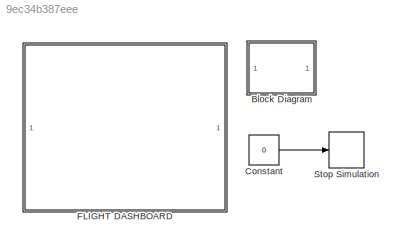
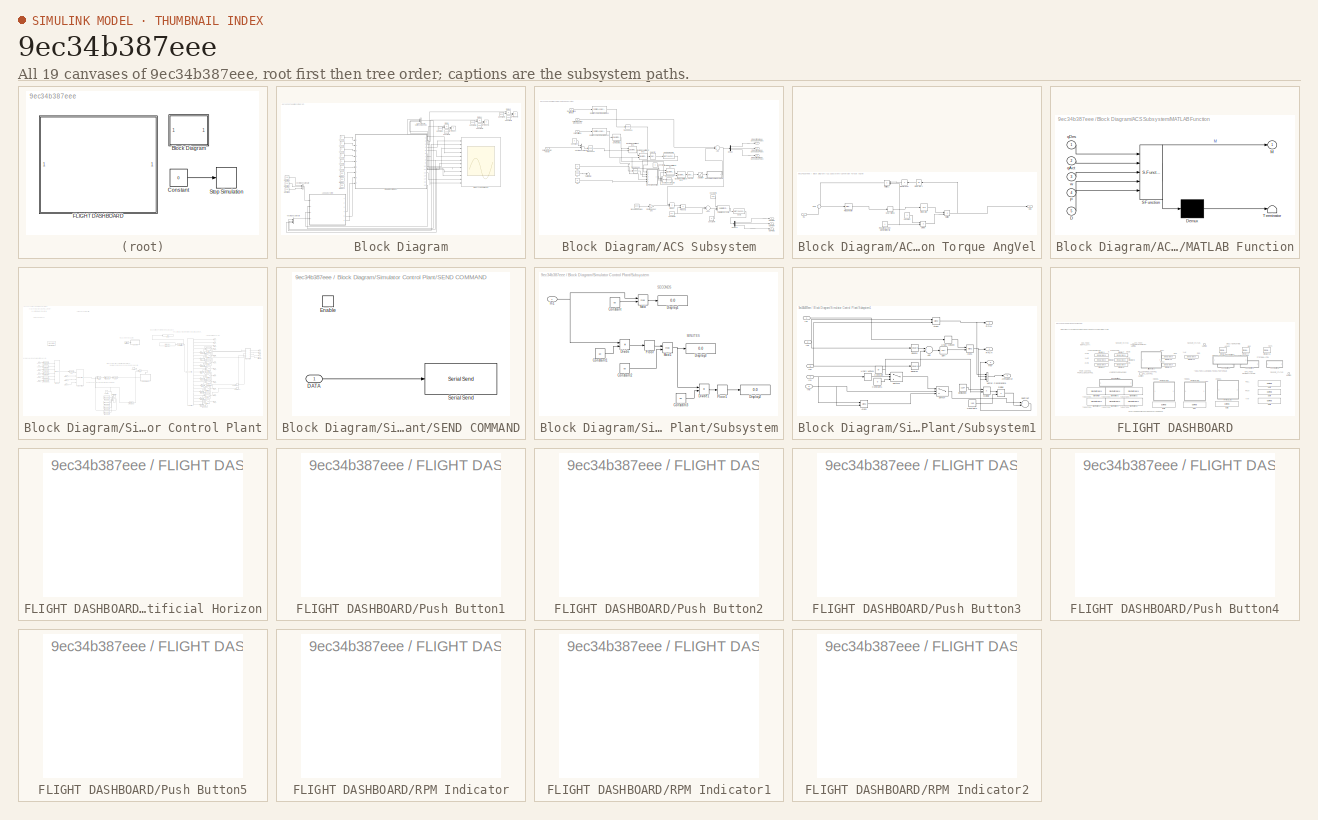
[diagram: thumbnail index - all 19 canvases of the model, root first then tree order]
MODEL slx_9ec34b387eee
KIND model
CONFIG AbsTol = auto
CONFIG EnableMultiTasking = on
CONFIG FixedStep = auto
CONFIG MaxStep = auto
CONFIG MinStep = auto
CONFIG RelTol = 1e-3
CONFIG SampleTimeConstraint = Unconstrained
CONFIG Solver = FixedStepAuto
CONFIG SolverName = FixedStepAuto
CONFIG StartTime = 0.0
CONFIG StopTime = inf
BLOCK [SubSystem] Block Diagram
  Ports = []
  RequestExecContextInheritance = off
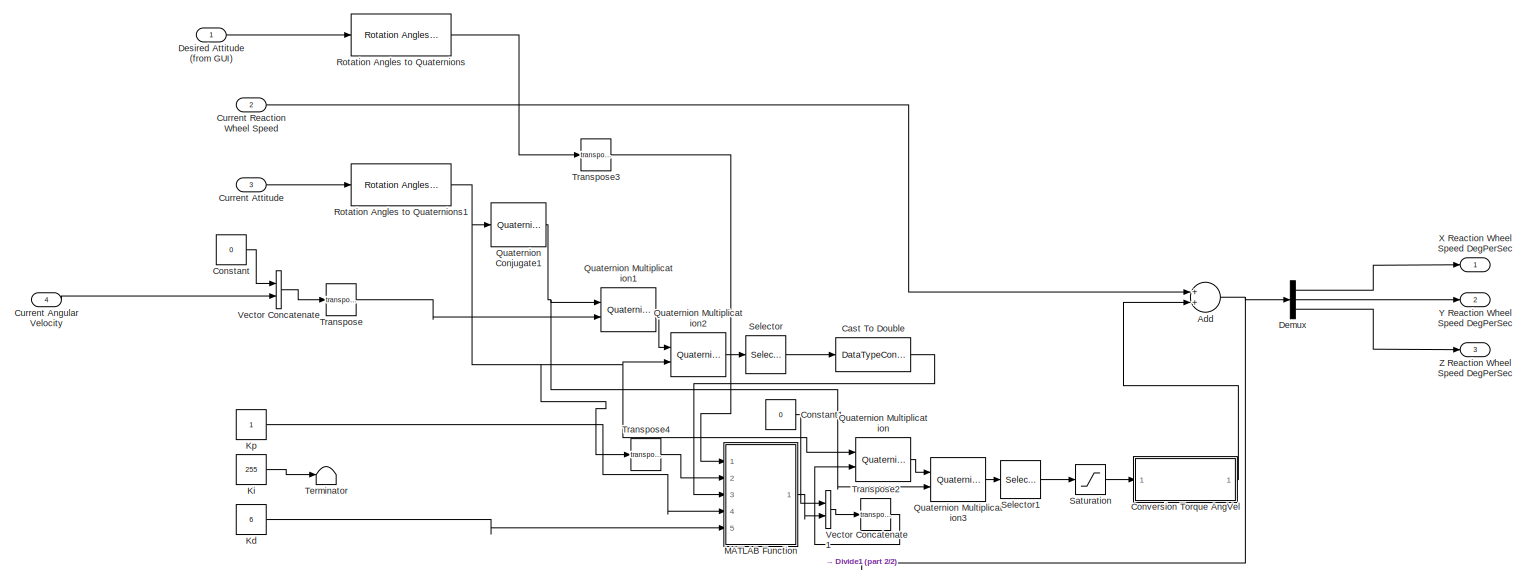
[diagram: Block Diagram/ACS Subsystem - part 1/2, full width, middle band]
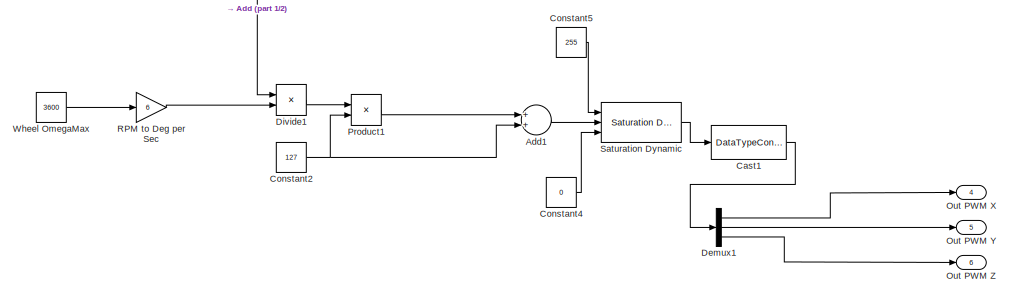
[diagram: Block Diagram/ACS Subsystem - part 2/2, bottom right region]
BLOCK [SubSystem] Block Diagram/ACS Subsystem
  Ports = [4, 6]
  RequestExecContextInheritance = off
BLOCK [Sum] Block Diagram/ACS Subsystem/Add
  InputSameDT = off
  OutDataTypeStr = Inherit: Inherit via internal rule
  Ports = [2, 1]
  SaturateOnIntegerOverflow = off
BLOCK [Sum] Block Diagram/ACS Subsystem/Add1
  InputSameDT = off
  OutDataTypeStr = Inherit: Inherit via internal rule
  Ports = [2, 1]
  SaturateOnIntegerOverflow = off
BLOCK [DataTypeConversion] Block Diagram/ACS Subsystem/Cast To Double
  OutDataTypeStr = double
  RndMeth = Floor
  SaturateOnIntegerOverflow = off
BLOCK [DataTypeConversion] Block Diagram/ACS Subsystem/Cast1
  OutDataTypeStr = int32
  RndMeth = Floor
BLOCK [Constant] Block Diagram/ACS Subsystem/Constant
  Value = 0
BLOCK [Constant] Block Diagram/ACS Subsystem/Constant1
  Value = 0
BLOCK [Constant] Block Diagram/ACS Subsystem/Constant2
  Value = 127
BLOCK [Constant] Block Diagram/ACS Subsystem/Constant4
  Value = 0
BLOCK [Constant] Block Diagram/ACS Subsystem/Constant5
  Value = 255
BLOCK [SubSystem] Block Diagram/ACS Subsystem/Conversion Torque AngVel
  Ports = [1, 1]
  RequestExecContextInheritance = off
BLOCK [Constant] Block Diagram/ACS Subsystem/Conversion Torque AngVel/Constant
BLOCK [Product] Block Diagram/ACS Subsystem/Conversion Torque AngVel/Divide
  InputSameDT = off
  Inputs = */
  OutDataTypeStr = Inherit: Inherit via internal rule
  Ports = [2, 1]
  RndMeth = Floor
  SaturateOnIntegerOverflow = off
BLOCK [Inport] Block Diagram/ACS Subsystem/Conversion Torque AngVel/In1
  IconDisplay = Port number
BLOCK [Integrator] Block Diagram/ACS Subsystem/Conversion Torque AngVel/Integrator
  Ports = [1, 1]
BLOCK [Integrator] Block Diagram/ACS Subsystem/Conversion Torque AngVel/Integrator1
  Ports = [1, 1]
BLOCK [Product] Block Diagram/ACS Subsystem/Conversion Torque AngVel/Multiply
  InputSameDT = off
  OutDataTypeStr = Inherit: Inherit via internal rule
  Ports = [2, 1]
  RndMeth = Floor
  SaturateOnIntegerOverflow = off
BLOCK [Product] Block Diagram/ACS Subsystem/Conversion Torque AngVel/Multiply1
  InputSameDT = off
  OutDataTypeStr = Inherit: Inherit via internal rule
  Ports = [2, 1]
  RndMeth = Floor
  SaturateOnIntegerOverflow = off
BLOCK [Outport] Block Diagram/ACS Subsystem/Conversion Torque AngVel/Out1
  IconDisplay = Port number
BLOCK [Reference] Block Diagram/ACS Subsystem/Conversion Torque AngVel/PID Controller  REF=simulink/Continuous/PID Controller
  Ports = [1, 1]
  SourceBlock = simulink/Continuous/PID Controller
  SourceProductBaseCode = SL
  SourceProductName = Simulink
  SourceType = PID 1dof
BLOCK [Constant] Block Diagram/ACS Subsystem/Conversion Torque AngVel/Reaction Wheel Moment of Inertia
BLOCK [Product] Block Diagram/ACS Subsystem/Conversion Torque AngVel/Reciprocal
  InputSameDT = off
  Inputs = /
  OutDataTypeStr = Inherit: Inherit via internal rule
  Ports = [1, 1]
  RndMeth = Floor
  SaturateOnIntegerOverflow = off
BLOCK [Sum] Block Diagram/ACS Subsystem/Conversion Torque AngVel/Sum
  IconShape = round
  InputSameDT = off
  Inputs = +|+
  OutDataTypeStr = Inherit: Inherit via internal rule
  Ports = [2, 1]
  SaturateOnIntegerOverflow = off
BLOCK [UnaryMinus] Block Diagram/ACS Subsystem/Conversion Torque AngVel/Unary Minus
BLOCK [Inport] Block Diagram/ACS Subsystem/Current Angular Velocity
  IconDisplay = Port number
  Port = 4
BLOCK [Inport] Block Diagram/ACS Subsystem/Current Attitude
  IconDisplay = Port number
  Port = 3
BLOCK [Inport] Block Diagram/ACS Subsystem/Current Reaction Wheel Speed
  IconDisplay = Port number
  Port = 2
BLOCK [Demux] Block Diagram/ACS Subsystem/Demux
  DisplayOption = bar
  Outputs = 3
  Ports = [1, 3]
BLOCK [Demux] Block Diagram/ACS Subsystem/Demux1
  DisplayOption = bar
  Outputs = 3
  Ports = [1, 3]
BLOCK [Inport] Block Diagram/ACS Subsystem/Desired Attitude (from GUI)
  IconDisplay = Port number
BLOCK [Product] Block Diagram/ACS Subsystem/Divide1
  InputSameDT = off
  Inputs = */
  OutDataTypeStr = Inherit: Inherit via internal rule
  Ports = [2, 1]
  RndMeth = Floor
  SaturateOnIntegerOverflow = off
BLOCK [Constant] Block Diagram/ACS Subsystem/Kd
  OutDataTypeStr = double
  SampleTime = -1
  Value = 6
BLOCK [Constant] Block Diagram/ACS Subsystem/Ki
  OutDataTypeStr = double
  SampleTime = -1
  Value = 255
BLOCK [Constant] Block Diagram/ACS Subsystem/Kp
  OutDataTypeStr = double
  SampleTime = -1
BLOCK [SubSystem] Block Diagram/ACS Subsystem/MATLAB Function
  ErrorFcn = Stateflow.Translate.translate
  PermitHierarchicalResolution = ExplicitOnly
  Ports = [5, 1]
  RequestExecContextInheritance = off
  SFBlockType = MATLAB Function
  TreatAsAtomicUnit = on
BLOCK [Demux] Block Diagram/ACS Subsystem/MATLAB Function/ Demux 
  Outputs = 1
  Ports = [1, 1]
BLOCK [S-Function] Block Diagram/ACS Subsystem/MATLAB Function/ SFunction 
  EnableBusSupport = on
  FunctionName = sf_sfun
  PortCounts = [5 2]
  Ports = [5, 2]
  SFcnIsStateOwnerBlock = off
  SFunctionDeploymentMode = off
  Tag = Stateflow S-Function FlightSimulator 2
BLOCK [Terminator] Block Diagram/ACS Subsystem/MATLAB Function/ Terminator 
BLOCK [Inport] Block Diagram/ACS Subsystem/MATLAB Function/D
  IconDisplay = Port number
  Port = 5
BLOCK [Outport] Block Diagram/ACS Subsystem/MATLAB Function/M
  IconDisplay = Port number
BLOCK [Inport] Block Diagram/ACS Subsystem/MATLAB Function/P
  IconDisplay = Port number
  Port = 4
BLOCK [Inport] Block Diagram/ACS Subsystem/MATLAB Function/qAct
  IconDisplay = Port number
  Port = 2
BLOCK [Inport] Block Diagram/ACS Subsystem/MATLAB Function/qDes
  IconDisplay = Port number
BLOCK [Inport] Block Diagram/ACS Subsystem/MATLAB Function/w
  IconDisplay = Port number
  Port = 3
BLOCK [Outport] Block Diagram/ACS Subsystem/Out PWM X
  IconDisplay = Port number
  Port = 4
BLOCK [Outport] Block Diagram/ACS Subsystem/Out PWM Y
  IconDisplay = Port number
  Port = 5
BLOCK [Outport] Block Diagram/ACS Subsystem/Out PWM Z
  IconDisplay = Port number
  Port = 6
BLOCK [Product] Block Diagram/ACS Subsystem/Product1
  InputSameDT = off
  OutDataTypeStr = Inherit: Inherit via internal rule
  Ports = [2, 1]
  RndMeth = Floor
  SaturateOnIntegerOverflow = off
BLOCK [Reference] Block Diagram/ACS Subsystem/Quaternion Conjugate1  REF=aerolibutil/Quaternion
Conjugate
  Ports = [1, 1]
  SourceBlock = aerolibutil/Quaternion\nConjugate
  SourceProductBaseCode = AE
  SourceProductName = Aerospace Blockset
  SourceType = Quaternion Conjugate
BLOCK [Reference] Block Diagram/ACS Subsystem/Quaternion Multiplication  REF=aerolibutil/Quaternion
Multiplication
  Ports = [2, 1]
  SourceBlock = aerolibutil/Quaternion\nMultiplication
  SourceProductBaseCode = AE
  SourceProductName = Aerospace Blockset
  SourceType = Quaternion Multiplication
BLOCK [Reference] Block Diagram/ACS Subsystem/Quaternion Multiplication1  REF=aerolibutil/Quaternion
Multiplication
  Ports = [2, 1]
  SourceBlock = aerolibutil/Quaternion\nMultiplication
  SourceProductBaseCode = AE
  SourceProductName = Aerospace Blockset
  SourceType = Quaternion Multiplication
BLOCK [Reference] Block Diagram/ACS Subsystem/Quaternion Multiplication2  REF=aerolibutil/Quaternion
Multiplication
  Ports = [2, 1]
  SourceBlock = aerolibutil/Quaternion\nMultiplication
  SourceProductBaseCode = AE
  SourceProductName = Aerospace Blockset
  SourceType = Quaternion Multiplication
BLOCK [Reference] Block Diagram/ACS Subsystem/Quaternion Multiplication3  REF=aerolibutil/Quaternion
Multiplication
  Ports = [2, 1]
  SourceBlock = aerolibutil/Quaternion\nMultiplication
  SourceProductBaseCode = AE
  SourceProductName = Aerospace Blockset
  SourceType = Quaternion Multiplication
BLOCK [Gain] Block Diagram/ACS Subsystem/RPM to Deg per Sec
  Gain = 6
  OutDataTypeStr = Inherit: Inherit via internal rule
  ParamDataTypeStr = Inherit: Inherit via internal rule
  SaturateOnIntegerOverflow = off
BLOCK [Reference] Block Diagram/ACS Subsystem/Rotation Angles to Quaternions  REF=sharedtransform/Rotation Angles to Quaternions
  AttributesFormatString = Rotation Order: %<rotationOrder>
  Ports = [1, 1]
  SourceBlock = sharedtransform/Rotation Angles to Quaternions
  SourceProductBaseCode = AE
  SourceProductName = Aerospace Blockset
  SourceType = Ang2Quat
BLOCK [Reference] Block Diagram/ACS Subsystem/Rotation Angles to Quaternions1  REF=sharedtransform/Rotation Angles to Quaternions
  AttributesFormatString = Rotation Order: %<rotationOrder>
  Ports = [1, 1]
  SourceBlock = sharedtransform/Rotation Angles to Quaternions
  SourceProductBaseCode = AE
  SourceProductName = Aerospace Blockset
  SourceType = Ang2Quat
BLOCK [Saturate] Block Diagram/ACS Subsystem/Saturation
  InputPortMap = u0
  LowerLimit = -0.43
  Ports = [1, 1]
  UpperLimit = 0.43
BLOCK [Reference] Block Diagram/ACS Subsystem/Saturation Dynamic  REF=simulink/Discontinuities/Saturation
Dynamic
  Ports = [3, 1]
  SourceBlock = simulink/Discontinuities/Saturation\nDynamic
  SourceProductBaseCode = SL
  SourceProductName = Simulink
  SourceType = Saturation Dynamic
BLOCK [Selector] Block Diagram/ACS Subsystem/Selector
  IndexOptions = Index vector (dialog)
  Indices = [2 3 4]
  InputPortWidth = 4
  OutputSizes = 1
  Ports = [1, 1]
BLOCK [Selector] Block Diagram/ACS Subsystem/Selector1
  IndexOptions = Index vector (dialog)
  Indices = [2 3 4]
  InputPortWidth = 4
  OutputSizes = 1
  Ports = [1, 1]
BLOCK [Terminator] Block Diagram/ACS Subsystem/Terminator
BLOCK [Math] Block Diagram/ACS Subsystem/Transpose
  Operator = transpose
  Ports = [1, 1]
BLOCK [Math] Block Diagram/ACS Subsystem/Transpose2
  Operator = transpose
  Ports = [1, 1]
BLOCK [Math] Block Diagram/ACS Subsystem/Transpose3
  Operator = transpose
  Ports = [1, 1]
BLOCK [Math] Block Diagram/ACS Subsystem/Transpose4
  Operator = transpose
  Ports = [1, 1]
BLOCK [Concatenate] Block Diagram/ACS Subsystem/Vector Concatenate
  Ports = [2, 1]
BLOCK [Concatenate] Block Diagram/ACS Subsystem/Vector Concatenate1
  Ports = [2, 1]
BLOCK [Constant] Block Diagram/ACS Subsystem/Wheel OmegaMax
  Value = 3600
BLOCK [Outport] Block Diagram/ACS Subsystem/X Reaction Wheel Speed DegPerSec
  IconDisplay = Port number
BLOCK [Outport] Block Diagram/ACS Subsystem/Y Reaction Wheel Speed DegPerSec
  IconDisplay = Port number
  Port = 2
BLOCK [Outport] Block Diagram/ACS Subsystem/Z Reaction Wheel Speed DegPerSec
  IconDisplay = Port number
  Port = 3
BLOCK [Concatenate] Block Diagram/Concatenate Current Reaction Wheel Speeds
  NumInputs = 3
  Ports = [3, 1]
BLOCK [Constant] Block Diagram/Constant
  Value = 3600
BLOCK [Constant] Block Diagram/Constant1
  Value = 100
BLOCK [Constant] Block Diagram/Constant2
  Value = 3600
BLOCK [Constant] Block Diagram/Constant3
  Value = 100
BLOCK [Constant] Block Diagram/Constant4
  Value = 3600
BLOCK [Constant] Block Diagram/Constant5
  Value = 100
BLOCK [Scope] Block Diagram/DISPLAY TELEMETRY
  Floating = off
  NumInputPorts = 12
  Ports = [12]
  ScopeSpecificationString = Simulink.scopes.TimeScopeBlockCfg('CurrentConfiguration', extmgr.ConfigurationSet(extmgr.Configuration('Core','General UI',true,'FigureColor',[0 0.0549019607843137 0.105882352941176],'DisplayFullSourceName',true,'ShowMainToolbar',false,'ShowStatusbar',false),extmgr.Configuration('Core','Source UI',true),extmgr.Configuration('Sources','WiredSimulink',true,'DataLogging',true),extmgr.Configuration('V...<+12064ch>
BLOCK [Constant] Block Diagram/Desired X
  OutDataTypeStr = double
  SampleTime = -1
  Value = 128
BLOCK [Constant] Block Diagram/Desired Y
  OutDataTypeStr = double
  SampleTime = -1
  Value = 128
BLOCK [Constant] Block Diagram/Desired Z
  OutDataTypeStr = double
  SampleTime = -1
  Value = 128
BLOCK [Product] Block Diagram/Divide
  InputSameDT = off
  Inputs = */
  OutDataTypeStr = Inherit: Inherit via internal rule
  Ports = [2, 1]
  RndMeth = Floor
  SaturateOnIntegerOverflow = off
BLOCK [Product] Block Diagram/Divide1
  InputSameDT = off
  Inputs = */
  OutDataTypeStr = Inherit: Inherit via internal rule
  Ports = [2, 1]
  RndMeth = Floor
  SaturateOnIntegerOverflow = off
BLOCK [Product] Block Diagram/Divide2
  InputSameDT = off
  Inputs = */
  OutDataTypeStr = Inherit: Inherit via internal rule
  Ports = [2, 1]
  RndMeth = Floor
  SaturateOnIntegerOverflow = off
BLOCK [Product] Block Diagram/Product
  InputSameDT = off
  OutDataTypeStr = Inherit: Inherit via internal rule
  Ports = [2, 1]
  RndMeth = Floor
  SaturateOnIntegerOverflow = off
BLOCK [Product] Block Diagram/Product1
  InputSameDT = off
  OutDataTypeStr = Inherit: Inherit via internal rule
  Ports = [2, 1]
  RndMeth = Floor
  SaturateOnIntegerOverflow = off
BLOCK [Product] Block Diagram/Product2
  InputSameDT = off
  OutDataTypeStr = Inherit: Inherit via internal rule
  Ports = [2, 1]
  RndMeth = Floor
  SaturateOnIntegerOverflow = off
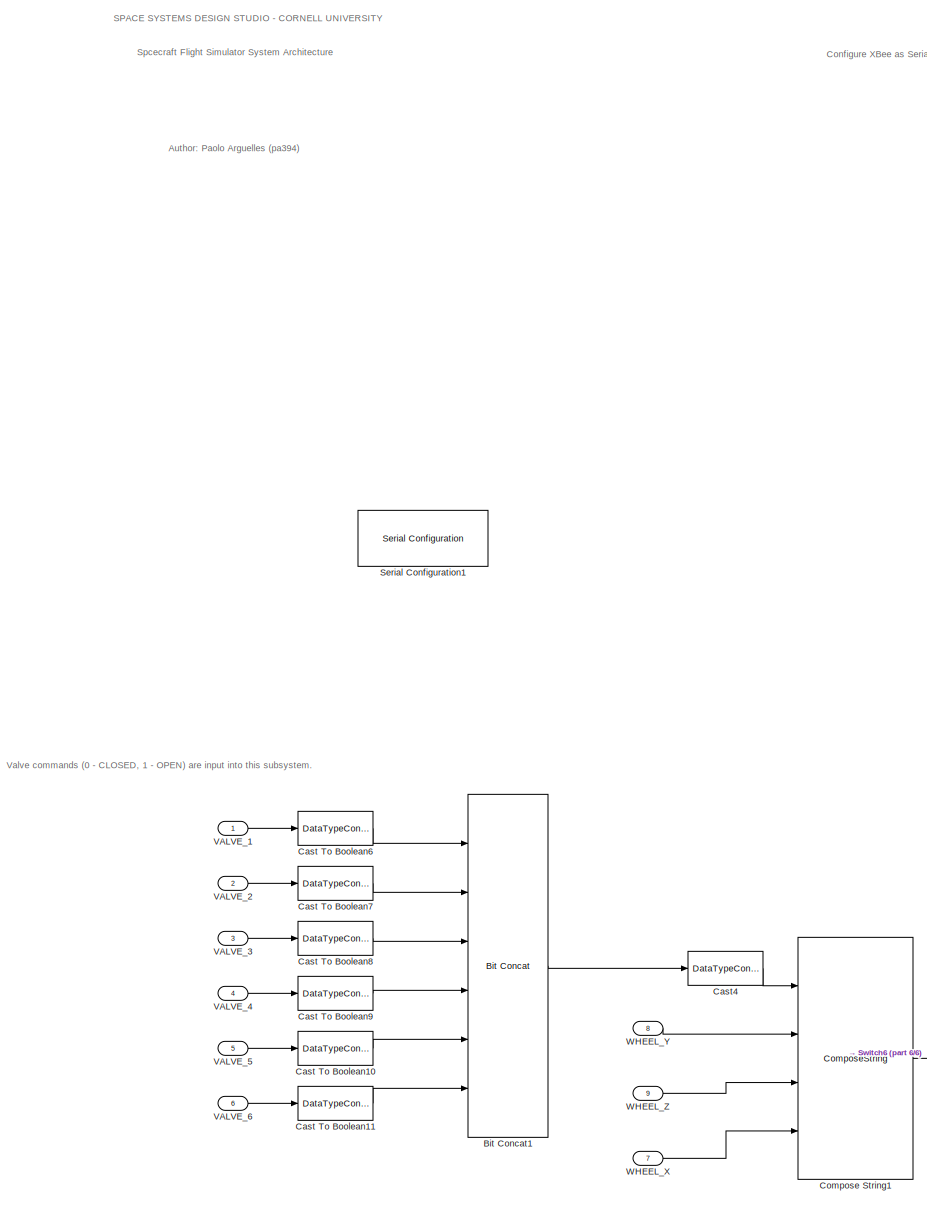
[diagram: Block Diagram/Simulator Control Plant - part 1/6, middle left region]
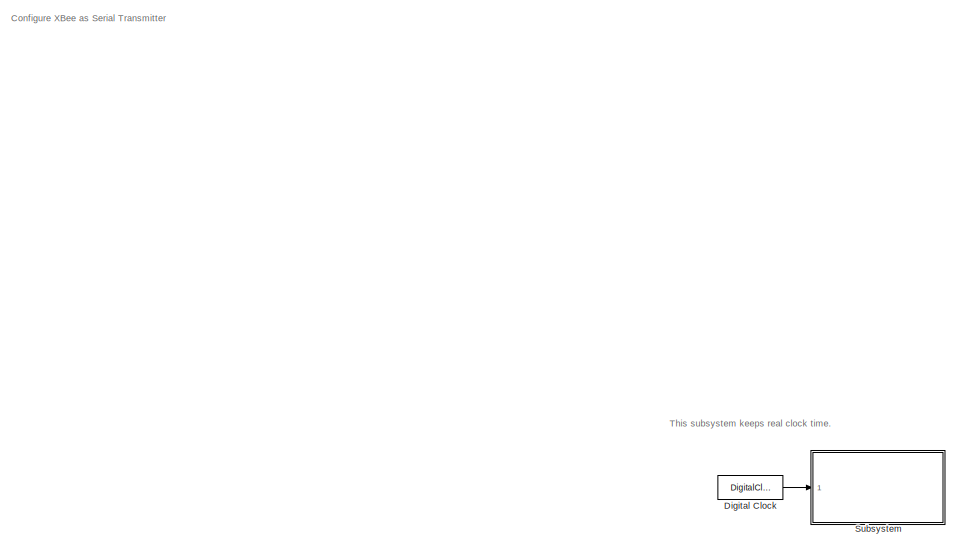
[diagram: Block Diagram/Simulator Control Plant - part 2/6, top center region]
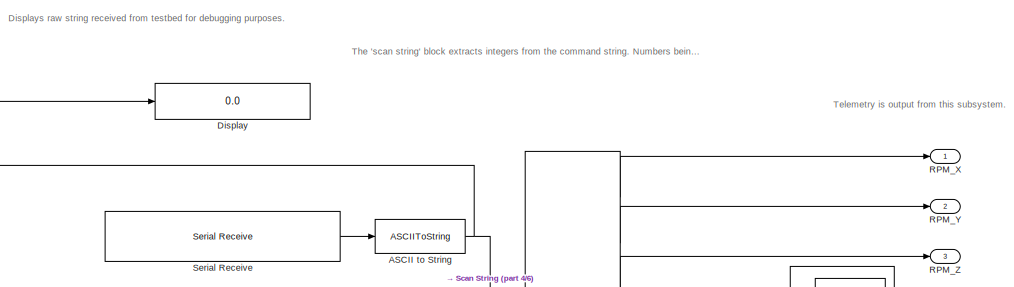
[diagram: Block Diagram/Simulator Control Plant - part 3/6, top right region]
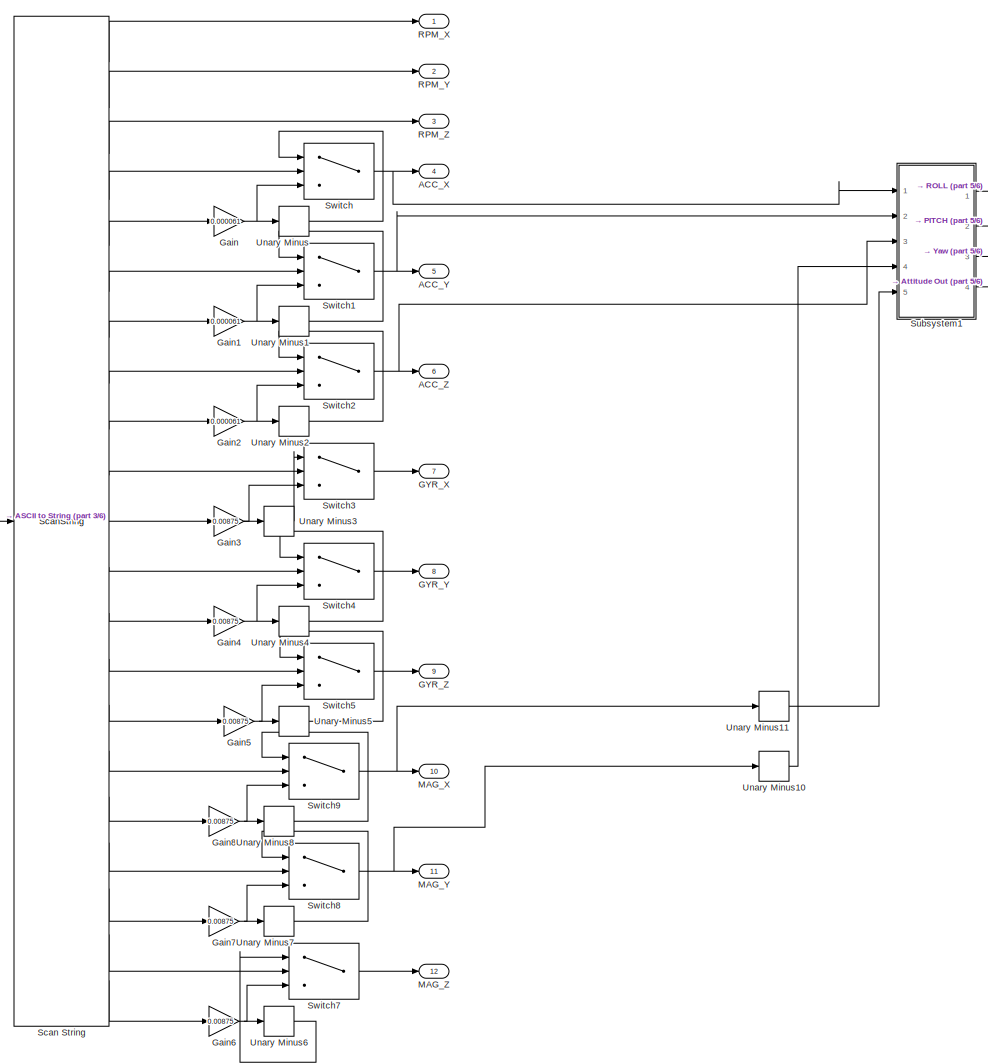
[diagram: Block Diagram/Simulator Control Plant - part 4/6, middle right region]
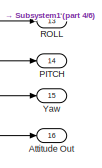
[diagram: Block Diagram/Simulator Control Plant - part 5/6, middle right region]
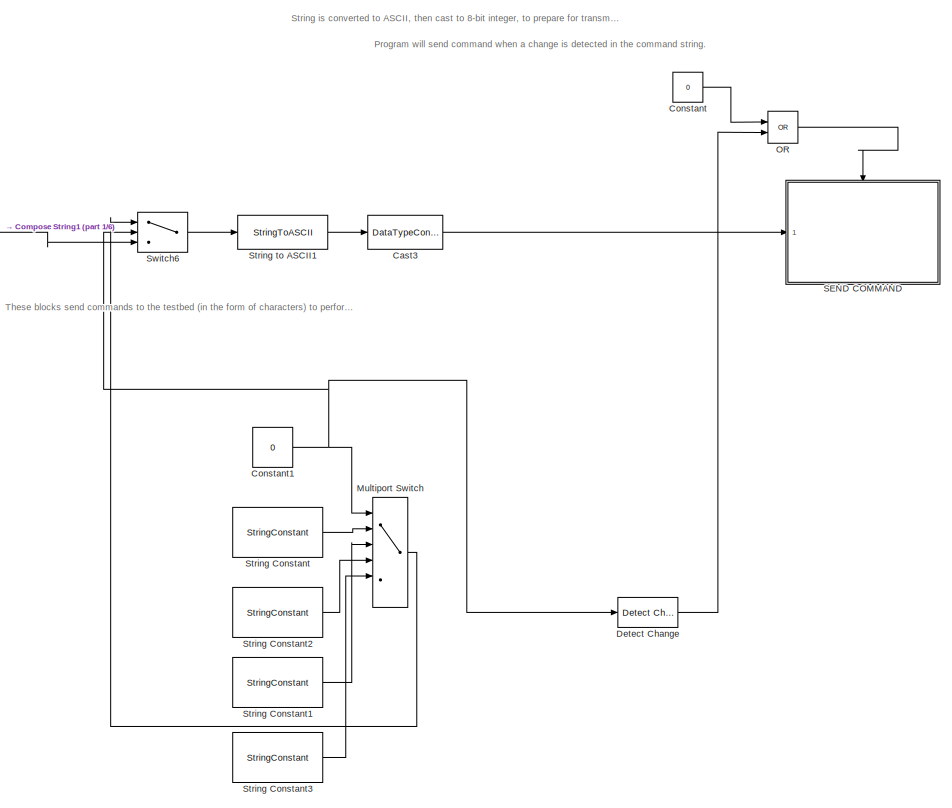
[diagram: Block Diagram/Simulator Control Plant - part 6/6, bottom center region]
BLOCK [SubSystem] Block Diagram/Simulator Control Plant
  Ports = [9, 16]
  RequestExecContextInheritance = off
BLOCK [Outport] Block Diagram/Simulator Control Plant/ ACC_X
  IconDisplay = Port number
  Port = 4
BLOCK [Outport] Block Diagram/Simulator Control Plant/ ACC_Y
  IconDisplay = Port number
  Port = 5
BLOCK [Outport] Block Diagram/Simulator Control Plant/ ACC_Z
  IconDisplay = Port number
  Port = 6
BLOCK [Outport] Block Diagram/Simulator Control Plant/ Attitude Out
  IconDisplay = Port number
  Port = 16
BLOCK [Outport] Block Diagram/Simulator Control Plant/ PITCH
  IconDisplay = Port number
  Port = 14
BLOCK [Outport] Block Diagram/Simulator Control Plant/ ROLL
  IconDisplay = Port number
  Port = 13
BLOCK [Outport] Block Diagram/Simulator Control Plant/ Yaw
  IconDisplay = Port number
  Port = 15
BLOCK [ASCIIToString] Block Diagram/Simulator Control Plant/ASCII to String
BLOCK [Reference] Block Diagram/Simulator Control Plant/Bit Concat1  REF=hdlsllib/Logic and Bit
Operations/Bit Concat
  Ports = [6, 1]
  SourceBlock = hdlsllib/Logic and Bit\nOperations/Bit Concat
  SourceProductBaseCode = HD
  SourceProductName = HDL Coder
  SourceType = Bit Concat
BLOCK [DataTypeConversion] Block Diagram/Simulator Control Plant/Cast To Boolean10
  OutDataTypeStr = boolean
  RndMeth = Floor
  SaturateOnIntegerOverflow = off
BLOCK [DataTypeConversion] Block Diagram/Simulator Control Plant/Cast To Boolean11
  OutDataTypeStr = boolean
  RndMeth = Floor
  SaturateOnIntegerOverflow = off
BLOCK [DataTypeConversion] Block Diagram/Simulator Control Plant/Cast To Boolean6
  OutDataTypeStr = boolean
  RndMeth = Floor
  SaturateOnIntegerOverflow = off
BLOCK [DataTypeConversion] Block Diagram/Simulator Control Plant/Cast To Boolean7
  OutDataTypeStr = boolean
  RndMeth = Floor
  SaturateOnIntegerOverflow = off
BLOCK [DataTypeConversion] Block Diagram/Simulator Control Plant/Cast To Boolean8
  OutDataTypeStr = boolean
  RndMeth = Floor
  SaturateOnIntegerOverflow = off
BLOCK [DataTypeConversion] Block Diagram/Simulator Control Plant/Cast To Boolean9
  OutDataTypeStr = boolean
  RndMeth = Floor
  SaturateOnIntegerOverflow = off
BLOCK [DataTypeConversion] Block Diagram/Simulator Control Plant/Cast3
  OutDataTypeStr = int8
  RndMeth = Floor
  SaturateOnIntegerOverflow = off
BLOCK [DataTypeConversion] Block Diagram/Simulator Control Plant/Cast4
  OutDataTypeStr = int8
  RndMeth = Floor
  SaturateOnIntegerOverflow = off
BLOCK [ComposeString] Block Diagram/Simulator Control Plant/Compose String1
  Format = "%d;%d;%d;%d\n"
  Ports = [4, 1]
BLOCK [Constant] Block Diagram/Simulator Control Plant/Constant
  Value = 0
BLOCK [Constant] Block Diagram/Simulator Control Plant/Constant1
  SampleTime = -1
  Value = 0
  VectorParams1D = off
BLOCK [Reference] Block Diagram/Simulator Control Plant/Detect Change  REF=simulink/Logic and Bit
Operations/Detect
Change
  Ports = [1, 1]
  SourceBlock = simulink/Logic and Bit\nOperations/Detect\nChange
  SourceProductBaseCode = SL
  SourceProductName = Simulink
  SourceType = Detect Change
BLOCK [DigitalClock] Block Diagram/Simulator Control Plant/Digital Clock
  SampleTime = -1
BLOCK [Display] Block Diagram/Simulator Control Plant/Display
  Decimation = 1
  Ports = [1]
BLOCK [Outport] Block Diagram/Simulator Control Plant/GYR_X
  IconDisplay = Port number
  Port = 7
BLOCK [Outport] Block Diagram/Simulator Control Plant/GYR_Y
  IconDisplay = Port number
  Port = 8
BLOCK [Outport] Block Diagram/Simulator Control Plant/GYR_Z
  IconDisplay = Port number
  Port = 9
BLOCK [Gain] Block Diagram/Simulator Control Plant/Gain
  Gain = 0.000061
  OutDataTypeStr = double
  ParamDataTypeStr = Inherit: Inherit via internal rule
  SaturateOnIntegerOverflow = off
BLOCK [Gain] Block Diagram/Simulator Control Plant/Gain1
  Gain = 0.000061
  OutDataTypeStr = double
  ParamDataTypeStr = Inherit: Inherit via internal rule
  SaturateOnIntegerOverflow = off
BLOCK [Gain] Block Diagram/Simulator Control Plant/Gain2
  Gain = 0.000061
  OutDataTypeStr = double
  ParamDataTypeStr = Inherit: Inherit via internal rule
  SaturateOnIntegerOverflow = off
BLOCK [Gain] Block Diagram/Simulator Control Plant/Gain3
  Gain = 0.00875
  OutDataTypeStr = double
  ParamDataTypeStr = Inherit: Inherit via internal rule
  SaturateOnIntegerOverflow = off
BLOCK [Gain] Block Diagram/Simulator Control Plant/Gain4
  Gain = 0.00875
  OutDataTypeStr = double
  ParamDataTypeStr = Inherit: Inherit via internal rule
  SaturateOnIntegerOverflow = off
BLOCK [Gain] Block Diagram/Simulator Control Plant/Gain5
  Gain = 0.00875
  OutDataTypeStr = double
  ParamDataTypeStr = Inherit: Inherit via internal rule
  SaturateOnIntegerOverflow = off
BLOCK [Gain] Block Diagram/Simulator Control Plant/Gain6
  Gain = 0.00875
  OutDataTypeStr = Inherit: Inherit via internal rule
  ParamDataTypeStr = Inherit: Inherit via internal rule
  SaturateOnIntegerOverflow = off
BLOCK [Gain] Block Diagram/Simulator Control Plant/Gain7
  Gain = 0.00875
  OutDataTypeStr = double
  ParamDataTypeStr = Inherit: Inherit via internal rule
  SaturateOnIntegerOverflow = off
BLOCK [Gain] Block Diagram/Simulator Control Plant/Gain8
  Gain = 0.00875
  OutDataTypeStr = double
  ParamDataTypeStr = Inherit: Inherit via internal rule
  SaturateOnIntegerOverflow = off
BLOCK [Outport] Block Diagram/Simulator Control Plant/MAG_X
  IconDisplay = Port number
  Port = 10
BLOCK [Outport] Block Diagram/Simulator Control Plant/MAG_Y
  IconDisplay = Port number
  Port = 11
BLOCK [Outport] Block Diagram/Simulator Control Plant/MAG_Z
  IconDisplay = Port number
  Port = 12
BLOCK [MultiPortSwitch] Block Diagram/Simulator Control Plant/Multiport Switch
  DiagnosticForDefault = None
  InputSameDT = off
  Inputs = 5
  Ports = [6, 1]
  SaturateOnIntegerOverflow = off
BLOCK [Logic] Block Diagram/Simulator Control Plant/OR
  AllPortsSameDT = off
  IconShape = distinctive
  Operator = OR
  OutDataTypeStr = boolean
  Ports = [2, 1]
BLOCK [Outport] Block Diagram/Simulator Control Plant/RPM_X
  IconDisplay = Port number
BLOCK [Outport] Block Diagram/Simulator Control Plant/RPM_Y
  IconDisplay = Port number
  Port = 2
BLOCK [Outport] Block Diagram/Simulator Control Plant/RPM_Z
  IconDisplay = Port number
  Port = 3
BLOCK [SubSystem] Block Diagram/Simulator Control Plant/SEND COMMAND
  Ports = [1, 0, 1]
  RequestExecContextInheritance = off
BLOCK [Inport] Block Diagram/Simulator Control Plant/SEND COMMAND/DATA
  IconDisplay = Port number
BLOCK [EnablePort] Block Diagram/Simulator Control Plant/SEND COMMAND/Enable
  Ports = [0, 1]
  ShowOutputPort = on
BLOCK [Reference] Block Diagram/Simulator Control Plant/SEND COMMAND/Serial Send  REF=instrumentlib/Serial Send
  Ports = [1]
  SourceBlock = instrumentlib/Serial Send
  SourceProductBaseCode = IC
  SourceProductName = Instrument Control Toolbox
  SourceType = Serial Send
BLOCK [ScanString] Block Diagram/Simulator Control Plant/Scan String
  Format = "\n%d;%d;%d$%d$%d$%d$%d$%d$%d$%d$%d$%d$%d$%d$%d$%d$%d$%d$%d$%d$%d\r"
  Ports = [1, 21]
BLOCK [Reference] Block Diagram/Simulator Control Plant/Serial Configuration1  REF=instrumentlib/Serial Configuration
  Ports = []
  Priority = -200000
  SourceBlock = instrumentlib/Serial Configuration
  SourceProductBaseCode = IC
  SourceProductName = Instrument Control Toolbox
  SourceType = Serial Configuration
BLOCK [Reference] Block Diagram/Simulator Control Plant/Serial Receive  REF=instrumentlib/Serial Receive
  Ports = [0, 1]
  SourceBlock = instrumentlib/Serial Receive
  SourceProductBaseCode = IC
  SourceProductName = Instrument Control Toolbox
  SourceType = Serial Receive
BLOCK [StringConstant] Block Diagram/Simulator Control Plant/String Constant
  String = 'Q'
BLOCK [StringConstant] Block Diagram/Simulator Control Plant/String Constant1
  String = 'R'
BLOCK [StringConstant] Block Diagram/Simulator Control Plant/String Constant2
  String = 'S'
BLOCK [StringConstant] Block Diagram/Simulator Control Plant/String Constant3
  String = 'B'
BLOCK [StringToASCII] Block Diagram/Simulator Control Plant/String to ASCII1
  MaximumLength = 27
BLOCK [SubSystem] Block Diagram/Simulator Control Plant/Subsystem
  Ports = [1]
  RequestExecContextInheritance = off
BLOCK [Constant] Block Diagram/Simulator Control Plant/Subsystem/Constant
  Value = 60
BLOCK [Constant] Block Diagram/Simulator Control Plant/Subsystem/Constant1
  Value = 60
BLOCK [Constant] Block Diagram/Simulator Control Plant/Subsystem/Constant2
  Value = 60
BLOCK [Constant] Block Diagram/Simulator Control Plant/Subsystem/Constant3
  Value = 60
BLOCK [Display] Block Diagram/Simulator Control Plant/Subsystem/Display1
  Decimation = 1
  Ports = [1]
BLOCK [Display] Block Diagram/Simulator Control Plant/Subsystem/Display2
  Decimation = 1
  Ports = [1]
BLOCK [Display] Block Diagram/Simulator Control Plant/Subsystem/Display3
  Decimation = 1
  Ports = [1]
BLOCK [Product] Block Diagram/Simulator Control Plant/Subsystem/Divide
  InputSameDT = off
  Inputs = */
  OutDataTypeStr = Inherit: Inherit via internal rule
  Ports = [2, 1]
  RndMeth = Floor
  SaturateOnIntegerOverflow = off
BLOCK [Product] Block Diagram/Simulator Control Plant/Subsystem/Divide1
  InputSameDT = off
  Inputs = */
  OutDataTypeStr = Inherit: Inherit via internal rule
  Ports = [2, 1]
  RndMeth = Floor
  SaturateOnIntegerOverflow = off
BLOCK [Rounding] Block Diagram/Simulator Control Plant/Subsystem/Floor
BLOCK [Rounding] Block Diagram/Simulator Control Plant/Subsystem/Floor1
BLOCK [Inport] Block Diagram/Simulator Control Plant/Subsystem/In1
  IconDisplay = Port number
BLOCK [Math] Block Diagram/Simulator Control Plant/Subsystem/Mod
  Operator = mod
  Ports = [2, 1]
BLOCK [Math] Block Diagram/Simulator Control Plant/Subsystem/Mod1
  Operator = mod
  Ports = [2, 1]
BLOCK [SubSystem] Block Diagram/Simulator Control Plant/Subsystem1
  Ports = [5, 4]
  RequestExecContextInheritance = off
BLOCK [Outport] Block Diagram/Simulator Control Plant/Subsystem1/ AttitudeOut
  IconDisplay = Port number
  Port = 4
BLOCK [Outport] Block Diagram/Simulator Control Plant/Subsystem1/ PITCH
  IconDisplay = Port number
  Port = 2
BLOCK [Outport] Block Diagram/Simulator Control Plant/Subsystem1/ ROLL
  IconDisplay = Port number
BLOCK [Outport] Block Diagram/Simulator Control Plant/Subsystem1/ YAW
  IconDisplay = Port number
  Port = 3
BLOCK [Sum] Block Diagram/Simulator Control Plant/Subsystem1/Add
  InputSameDT = off
  OutDataTypeStr = Inherit: Inherit via internal rule
  Ports = [2, 1]
  SaturateOnIntegerOverflow = off
BLOCK [Trigonometry] Block Diagram/Simulator Control Plant/Subsystem1/Atan1
  Operator = atan2
  Ports = [2, 1]
BLOCK [Trigonometry] Block Diagram/Simulator Control Plant/Subsystem1/Atan2
  Operator = atan2
  OutputSignalType = real
  Ports = [2, 1]
BLOCK [Trigonometry] Block Diagram/Simulator Control Plant/Subsystem1/Atan3
  Operator = atan2
  Ports = [2, 1]
BLOCK [Constant] Block Diagram/Simulator Control Plant/Subsystem1/Constant
  Value = pi
BLOCK [Constant] Block Diagram/Simulator Control Plant/Subsystem1/Constant1
  Value = 0
BLOCK [Constant] Block Diagram/Simulator Control Plant/Subsystem1/Constant2
  Value = 180
BLOCK [Product] Block Diagram/Simulator Control Plant/Subsystem1/Divide
  InputSameDT = off
  Inputs = */
  OutDataTypeStr = Inherit: Inherit via internal rule
  Ports = [2, 1]
  RndMeth = Floor
  SaturateOnIntegerOverflow = off
BLOCK [Inport] Block Diagram/Simulator Control Plant/Subsystem1/In1
  IconDisplay = Port number
BLOCK [Inport] Block Diagram/Simulator Control Plant/Subsystem1/In2
  IconDisplay = Port number
  Port = 2
BLOCK [Inport] Block Diagram/Simulator Control Plant/Subsystem1/In3
  IconDisplay = Port number
  Port = 3
BLOCK [Inport] Block Diagram/Simulator Control Plant/Subsystem1/In4
  IconDisplay = Port number
  Port = 4
BLOCK [Inport] Block Diagram/Simulator Control Plant/Subsystem1/In5
  IconDisplay = Port number
  Port = 5
BLOCK [Product] Block Diagram/Simulator Control Plant/Subsystem1/Multiply
  InputSameDT = off
  OutDataTypeStr = Inherit: Inherit via internal rule
  Ports = [2, 1]
  RndMeth = Floor
  SaturateOnIntegerOverflow = off
BLOCK [Sqrt] Block Diagram/Simulator Control Plant/Subsystem1/Sqrt
BLOCK [Math] Block Diagram/Simulator Control Plant/Subsystem1/Square
  Operator = square
  Ports = [1, 1]
BLOCK [Math] Block Diagram/Simulator Control Plant/Subsystem1/Square1
  Operator = square
  Ports = [1, 1]
BLOCK [Sum] Block Diagram/Simulator Control Plant/Subsystem1/Subtract
  InputSameDT = off
  Inputs = +-
  OutDataTypeStr = Inherit: Inherit via internal rule
  Ports = [2, 1]
  SaturateOnIntegerOverflow = off
BLOCK [Switch] Block Diagram/Simulator Control Plant/Subsystem1/Switch
  Criteria = u2 ~= 0
  InputSameDT = off
  SaturateOnIntegerOverflow = off
BLOCK [Switch] Block Diagram/Simulator Control Plant/Subsystem1/Switch1
  Criteria = u2 > Threshold
  InputSameDT = off
  SaturateOnIntegerOverflow = off
BLOCK [UnaryMinus] Block Diagram/Simulator Control Plant/Subsystem1/Unary Minus1
BLOCK [UnaryMinus] Block Diagram/Simulator Control Plant/Subsystem1/Unary Minus9
BLOCK [Concatenate] Block Diagram/Simulator Control Plant/Subsystem1/Vector Concatenate
  NumInputs = 3
  Ports = [3, 1]
BLOCK [Constant] Block Diagram/Simulator Control Plant/Subsystem1/declination
  Value = 11.84
BLOCK [Switch] Block Diagram/Simulator Control Plant/Switch
  Criteria = u2 ~= 0
  InputSameDT = off
  SaturateOnIntegerOverflow = off
BLOCK [Switch] Block Diagram/Simulator Control Plant/Switch1
  Criteria = u2 ~= 0
  InputSameDT = off
  SaturateOnIntegerOverflow = off
BLOCK [Switch] Block Diagram/Simulator Control Plant/Switch2
  Criteria = u2 ~= 0
  InputSameDT = off
  SaturateOnIntegerOverflow = off
BLOCK [Switch] Block Diagram/Simulator Control Plant/Switch3
  Criteria = u2 ~= 0
  InputSameDT = off
  SaturateOnIntegerOverflow = off
BLOCK [Switch] Block Diagram/Simulator Control Plant/Switch4
  Criteria = u2 ~= 0
  InputSameDT = off
  SaturateOnIntegerOverflow = off
BLOCK [Switch] Block Diagram/Simulator Control Plant/Switch5
  Criteria = u2 ~= 0
  InputSameDT = off
  SaturateOnIntegerOverflow = off
BLOCK [Switch] Block Diagram/Simulator Control Plant/Switch6
  Criteria = u2 ~= 0
  InputSameDT = off
  SaturateOnIntegerOverflow = off
BLOCK [Switch] Block Diagram/Simulator Control Plant/Switch7
  Criteria = u2 ~= 0
  InputSameDT = off
  SaturateOnIntegerOverflow = off
BLOCK [Switch] Block Diagram/Simulator Control Plant/Switch8
  Criteria = u2 ~= 0
  InputSameDT = off
  SaturateOnIntegerOverflow = off
BLOCK [Switch] Block Diagram/Simulator Control Plant/Switch9
  Criteria = u2 ~= 0
  InputSameDT = off
  SaturateOnIntegerOverflow = off
BLOCK [UnaryMinus] Block Diagram/Simulator Control Plant/Unary Minus
BLOCK [UnaryMinus] Block Diagram/Simulator Control Plant/Unary Minus1
BLOCK [UnaryMinus] Block Diagram/Simulator Control Plant/Unary Minus10
BLOCK [UnaryMinus] Block Diagram/Simulator Control Plant/Unary Minus11
BLOCK [UnaryMinus] Block Diagram/Simulator Control Plant/Unary Minus2
BLOCK [UnaryMinus] Block Diagram/Simulator Control Plant/Unary Minus3
BLOCK [UnaryMinus] Block Diagram/Simulator Control Plant/Unary Minus4
BLOCK [UnaryMinus] Block Diagram/Simulator Control Plant/Unary Minus5
BLOCK [UnaryMinus] Block Diagram/Simulator Control Plant/Unary Minus6
BLOCK [UnaryMinus] Block Diagram/Simulator Control Plant/Unary Minus7
BLOCK [UnaryMinus] Block Diagram/Simulator Control Plant/Unary Minus8
BLOCK [Inport] Block Diagram/Simulator Control Plant/VALVE_1
  IconDisplay = Port number
BLOCK [Inport] Block Diagram/Simulator Control Plant/VALVE_2
  IconDisplay = Port number
  Port = 2
BLOCK [Inport] Block Diagram/Simulator Control Plant/VALVE_3
  IconDisplay = Port number
  Port = 3
BLOCK [Inport] Block Diagram/Simulator Control Plant/VALVE_4
  IconDisplay = Port number
  Port = 4
BLOCK [Inport] Block Diagram/Simulator Control Plant/VALVE_5
  IconDisplay = Port number
  Port = 5
BLOCK [Inport] Block Diagram/Simulator Control Plant/VALVE_6
  IconDisplay = Port number
  Port = 6
BLOCK [Inport] Block Diagram/Simulator Control Plant/WHEEL_X
  IconDisplay = Port number
  Port = 7
BLOCK [Inport] Block Diagram/Simulator Control Plant/WHEEL_Y
  IconDisplay = Port number
  Port = 8
BLOCK [Inport] Block Diagram/Simulator Control Plant/WHEEL_Z
  IconDisplay = Port number
  Port = 9
BLOCK [Constant] Block Diagram/VALVE 1
  SampleTime = 0.01
  Value = 0
BLOCK [Constant] Block Diagram/VALVE 2
  SampleTime = 0.01
  Value = 0
BLOCK [Constant] Block Diagram/VALVE 3
  SampleTime = 0.01
  Value = 0
BLOCK [Constant] Block Diagram/VALVE 4
  SampleTime = 0.01
  Value = 0
BLOCK [Constant] Block Diagram/VALVE 5
  SampleTime = 0.01
  Value = 0
BLOCK [Constant] Block Diagram/VALVE 6
  SampleTime = 0.01
  Value = 0
BLOCK [Concatenate] Block Diagram/Vector Concatenate
  NumInputs = 3
  Ports = [3, 1]
BLOCK [Concatenate] Block Diagram/Vector Concatenate1
  NumInputs = 3
  Ports = [3, 1]
BLOCK [Constant] Block Diagram/WHEEL X
  OutDataTypeStr = int16
  SampleTime = -1
  Value = 128
BLOCK [Constant] Block Diagram/WHEEL Y
  OutDataTypeStr = int16
  SampleTime = -1
  Value = 128
BLOCK [Constant] Block Diagram/WHEEL Z
  OutDataTypeStr = int16
  SampleTime = -1
  Value = 128
BLOCK [Constant] Constant
  Value = 0
BLOCK [SubSystem] FLIGHT DASHBOARD
  Ports = []
  RequestExecContextInheritance = off
BLOCK [SubSystem] FLIGHT DASHBOARD/Artificial Horizon
  DialogController = aeroblksHMICreateDDGDialog
  IsWebBlock = on
  Ports = []
  RequestExecContextInheritance = off
BLOCK [DisplayBlock] FLIGHT DASHBOARD/Display10
  Alignment = Left
  LabelPosition = Hide
  WebBlockId = 325
BLOCK [DisplayBlock] FLIGHT DASHBOARD/Display11
  Alignment = Left
  LabelPosition = Hide
  WebBlockId = 327
BLOCK [DisplayBlock] FLIGHT DASHBOARD/Display12
  Alignment = Left
  LabelPosition = Hide
  WebBlockId = 329
BLOCK [DisplayBlock] FLIGHT DASHBOARD/Display16
  Alignment = Left
  LabelPosition = Hide
  WebBlockId = 711
BLOCK [DisplayBlock] FLIGHT DASHBOARD/Display17
  Alignment = Left
  LabelPosition = Hide
  WebBlockId = 712
BLOCK [DisplayBlock] FLIGHT DASHBOARD/Display3
  Alignment = Left
  LabelPosition = Hide
  WebBlockId = 710
BLOCK [DisplayBlock] FLIGHT DASHBOARD/Display4
  Alignment = Left
  LabelPosition = Hide
  WebBlockId = 266
BLOCK [DisplayBlock] FLIGHT DASHBOARD/Display5
  Alignment = Left
  LabelPosition = Hide
  WebBlockId = 268
BLOCK [DisplayBlock] FLIGHT DASHBOARD/Display6
  Alignment = Left
  LabelPosition = Hide
  WebBlockId = 270
BLOCK [DisplayBlock] FLIGHT DASHBOARD/Display7
  Alignment = Left
  LabelPosition = Hide
  WebBlockId = 313
BLOCK [DisplayBlock] FLIGHT DASHBOARD/Display8
  Alignment = Left
  LabelPosition = Hide
  WebBlockId = 314
BLOCK [DisplayBlock] FLIGHT DASHBOARD/Display9
  Alignment = Left
  LabelPosition = Hide
  WebBlockId = 315
BLOCK [EditField] FLIGHT DASHBOARD/Edit
  Alignment = Center
  LabelPosition = Hide
  WebBlockId = 830
BLOCK [EditField] FLIGHT DASHBOARD/Edit1
  Alignment = Center
  LabelPosition = Hide
  WebBlockId = 828
BLOCK [EditField] FLIGHT DASHBOARD/Edit2
  Alignment = Center
  LabelPosition = Hide
  WebBlockId = 829
BLOCK [EditField] FLIGHT DASHBOARD/Edit3
  Alignment = Center
  LabelPosition = Hide
  WebBlockId = 1336
BLOCK [EditField] FLIGHT DASHBOARD/Edit4
  Alignment = Center
  LabelPosition = Hide
  WebBlockId = 1337
BLOCK [EditField] FLIGHT DASHBOARD/Edit5
  Alignment = Center
  LabelPosition = Hide
  WebBlockId = 1338
BLOCK [LampBlock] FLIGHT DASHBOARD/Lamp1
  LabelPosition = Hide
  WebBlockId = 841
BLOCK [LampBlock] FLIGHT DASHBOARD/Lamp2
  LabelPosition = Hide
  WebBlockId = 399
BLOCK [LampBlock] FLIGHT DASHBOARD/Lamp3
  LabelPosition = Hide
  WebBlockId = 401
BLOCK [LampBlock] FLIGHT DASHBOARD/Lamp4
  LabelPosition = Hide
  WebBlockId = 1063
BLOCK [SubSystem] FLIGHT DASHBOARD/Push Button1
  DialogController = hmiCreateDDGDialog
  IsWebBlock = on
  Ports = []
  RequestExecContextInheritance = off
BLOCK [SubSystem] FLIGHT DASHBOARD/Push Button2
  DialogController = hmiCreateDDGDialog
  IsWebBlock = on
  Ports = []
  RequestExecContextInheritance = off
BLOCK [SubSystem] FLIGHT DASHBOARD/Push Button3
  DialogController = hmiCreateDDGDialog
  IsWebBlock = on
  Ports = []
  RequestExecContextInheritance = off
BLOCK [SubSystem] FLIGHT DASHBOARD/Push Button4
  DialogController = hmiCreateDDGDialog
  IsWebBlock = on
  Ports = []
  RequestExecContextInheritance = off
BLOCK [SubSystem] FLIGHT DASHBOARD/Push Button5
  DialogController = hmiCreateDDGDialog
  IsWebBlock = on
  Ports = []
  RequestExecContextInheritance = off
BLOCK [SubSystem] FLIGHT DASHBOARD/RPM Indicator
  DialogController = aeroblksHMICreateDDGDialog
  IsWebBlock = on
  Ports = []
  RequestExecContextInheritance = off
BLOCK [SubSystem] FLIGHT DASHBOARD/RPM Indicator1
  DialogController = aeroblksHMICreateDDGDialog
  IsWebBlock = on
  Ports = []
  RequestExecContextInheritance = off
BLOCK [SubSystem] FLIGHT DASHBOARD/RPM Indicator2
  DialogController = aeroblksHMICreateDDGDialog
  IsWebBlock = on
  Ports = []
  RequestExecContextInheritance = off
BLOCK [SliderSwitchBlock] FLIGHT DASHBOARD/Slider Switch
  WebBlockId = 1066
BLOCK [SliderSwitchBlock] FLIGHT DASHBOARD/Slider Switch1
  WebBlockId = 1067
BLOCK [SliderSwitchBlock] FLIGHT DASHBOARD/Slider Switch2
  WebBlockId = 1068
BLOCK [SliderSwitchBlock] FLIGHT DASHBOARD/Slider Switch3
  WebBlockId = 1069
BLOCK [SliderSwitchBlock] FLIGHT DASHBOARD/Slider Switch4
  WebBlockId = 1070
BLOCK [SliderSwitchBlock] FLIGHT DASHBOARD/Slider Switch5
  WebBlockId = 1071
BLOCK [Stop] Stop Simulation
ANNOTATION Block Diagram/Simulator Control Plant: SPACE SYSTEMS DESIGN STUDIO - CORNELL UNIVERSITY
ANNOTATION Block Diagram/Simulator Control Plant: Author: Paolo Arguelles (pa394)
ANNOTATION Block Diagram/Simulator Control Plant: Spcecraft Flight Simulator System Architecture
ANNOTATION Block Diagram/Simulator Control Plant: Configure XBee as Serial Transmitter
ANNOTATION Block Diagram/Simulator Control Plant: Displays raw string received from testbed for debugging purposes.
ANNOTATION Block Diagram/Simulator Control Plant: Program will send command when a change is detected in the command string.
ANNOTATION Block Diagram/Simulator Control Plant: String is converted to ASCII, then cast to 8-bit integer, to prepare for transmission to testbed.
ANNOTATION Block Diagram/Simulator Control Plant: Telemetry is output from this subsystem.
ANNOTATION Block Diagram/Simulator Control Plant: The 'scan string' block extracts integers from the command string. Numbers being extracted consist of data and sign bits. Raw data is then scaled by a constant (predetermined by the IMU datasheet) to convert the ADC integer into engineering units.
ANNOTATION Block Diagram/Simulator Control Plant: These blocks send commands to the testbed (in the form of characters) to perform remote reboots/shutdown of the testbed computer. No need to worry about these -- these just make it more convenient to reboot the system in the event of an error.
ANNOTATION Block Diagram/Simulator Control Plant: This subsystem keeps real clock time.
ANNOTATION Block Diagram/Simulator Control Plant: Valve commands (0 - CLOSED, 1 - OPEN) are input into this subsystem.
ANNOTATION Block Diagram/Simulator Control Plant/Subsystem: MINUTES
ANNOTATION Block Diagram/Simulator Control Plant/Subsystem: SECONDS
ANNOTATION FLIGHT DASHBOARD: DESIRED ATTITUDE
ANNOTATION FLIGHT DASHBOARD: PROPULSION CONTROL
ANNOTATION FLIGHT DASHBOARD: DEG
ANNOTATION FLIGHT DASHBOARD: PITCH
ANNOTATION FLIGHT DASHBOARD: ROLL
ANNOTATION FLIGHT DASHBOARD: YAW
ANNOTATION FLIGHT DASHBOARD: HOURS
ANNOTATION FLIGHT DASHBOARD: MINS
ANNOTATION FLIGHT DASHBOARD: SECS
ANNOTATION FLIGHT DASHBOARD: SIMULATION RUNTIME
ANNOTATION FLIGHT DASHBOARD: STOP SIMULATION
ANNOTATION FLIGHT DASHBOARD: LOW PRESSURE WARNING
ANNOTATION FLIGHT DASHBOARD: 0 - FULL SPEED CCW | 128 - STOP | 255 - FULL SPEED CW
ANNOTATION FLIGHT DASHBOARD: ATTITUDE TELEMETRY
ANNOTATION FLIGHT DASHBOARD: INERTIAL DATA
ANNOTATION FLIGHT DASHBOARD: REACTION WHEEL CONTROL
ANNOTATION FLIGHT DASHBOARD: *NEGATIVE VALUES INDICATE NEGATIVE TORQUE
ANNOTATION FLIGHT DASHBOARD: DEG/S
ANNOTATION FLIGHT DASHBOARD: G
ANNOTATION FLIGHT DASHBOARD: X-AXIS
ANNOTATION FLIGHT DASHBOARD: Y-AXIS
ANNOTATION FLIGHT DASHBOARD: Z-AXIS
ANNOTATION FLIGHT DASHBOARD: ACCELEROMETER
ANNOTATION FLIGHT DASHBOARD: GYROSCOPE
ANNOTATION FLIGHT DASHBOARD: REBOOT TESTBED
ANNOTATION FLIGHT DASHBOARD: SHUTDOWN TESTBED
ANNOTATION FLIGHT DASHBOARD: THRUSTER 1
ANNOTATION FLIGHT DASHBOARD: THRUSTER 2
ANNOTATION FLIGHT DASHBOARD: THRUSTER 3
ANNOTATION FLIGHT DASHBOARD: THRUSTER 4
ANNOTATION FLIGHT DASHBOARD: THRUSTER 5
ANNOTATION FLIGHT DASHBOARD: THRUSTER 6
ANNOTATION FLIGHT DASHBOARD: X-WHEEL
ANNOTATION FLIGHT DASHBOARD: Y-WHEEL
ANNOTATION FLIGHT DASHBOARD: Z-WHEEL
ANNOTATION FLIGHT DASHBOARD: EPS_FEED
ANNOTATION FLIGHT DASHBOARD: GNC_CONTROL
ANNOTATION FLIGHT DASHBOARD: GNC_FEED
ANNOTATION FLIGHT DASHBOARD: PROP_CONTROL
ANNOTATION FLIGHT DASHBOARD: SENSOR_STATUS
ANNOTATION FLIGHT DASHBOARD: HIGH AGILITY ATTITUDE TESTBED AND SPACECRAFT FLIGHT SIMULATOR
LINE Block Diagram/ACS Subsystem/Add1:1 -> Block Diagram/ACS Subsystem/Saturation Dynamic:2
NET Block Diagram/ACS Subsystem/Add:1 -> Block Diagram/ACS Subsystem/Demux:1, Block Diagram/ACS Subsystem/Divide1:1
LINE Block Diagram/ACS Subsystem/Cast To Double:1 -> Block Diagram/ACS Subsystem/MATLAB Function:3
LINE Block Diagram/ACS Subsystem/Cast1:1 -> Block Diagram/ACS Subsystem/Demux1:1
LINE Block Diagram/ACS Subsystem/Constant1:1 -> Block Diagram/ACS Subsystem/Vector Concatenate1:1
NET Block Diagram/ACS Subsystem/Constant2:1 -> Block Diagram/ACS Subsystem/Add1:2, Block Diagram/ACS Subsystem/Product1:2
LINE Block Diagram/ACS Subsystem/Constant4:1 -> Block Diagram/ACS Subsystem/Saturation Dynamic:3
LINE Block Diagram/ACS Subsystem/Constant5:1 -> Block Diagram/ACS Subsystem/Saturation Dynamic:1
LINE Block Diagram/ACS Subsystem/Constant:1 -> Block Diagram/ACS Subsystem/Vector Concatenate:1
LINE Block Diagram/ACS Subsystem/Conversion Torque AngVel/Constant:1 -> Block Diagram/ACS Subsystem/Conversion Torque AngVel/Divide:1
LINE Block Diagram/ACS Subsystem/Conversion Torque AngVel/Divide:1 -> Block Diagram/ACS Subsystem/Conversion Torque AngVel/Multiply:2
LINE Block Diagram/ACS Subsystem/Conversion Torque AngVel/In1:1 -> Block Diagram/ACS Subsystem/Conversion Torque AngVel/Sum:2
LINE Block Diagram/ACS Subsystem/Conversion Torque AngVel/Integrator1:1 -> Block Diagram/ACS Subsystem/Conversion Torque AngVel/Reciprocal:1
LINE Block Diagram/ACS Subsystem/Conversion Torque AngVel/Integrator:1 -> Block Diagram/ACS Subsystem/Conversion Torque AngVel/Multiply:1
LINE Block Diagram/ACS Subsystem/Conversion Torque AngVel/Multiply1:1 -> Block Diagram/ACS Subsystem/Conversion Torque AngVel/Sum:1
NET Block Diagram/ACS Subsystem/Conversion Torque AngVel/Multiply:1 -> Block Diagram/ACS Subsystem/Conversion Torque AngVel/Integrator1:1, Block Diagram/ACS Subsystem/Conversion Torque AngVel/Out1:1
LINE Block Diagram/ACS Subsystem/Conversion Torque AngVel/PID Controller:1 -> Block Diagram/ACS Subsystem/Conversion Torque AngVel/Unary Minus:1
NET Block Diagram/ACS Subsystem/Conversion Torque AngVel/Reaction Wheel Moment of Inertia:1 -> Block Diagram/ACS Subsystem/Conversion Torque AngVel/Divide:2, Block Diagram/ACS Subsystem/Conversion Torque AngVel/Multiply1:2
LINE Block Diagram/ACS Subsystem/Conversion Torque AngVel/Reciprocal:1 -> Block Diagram/ACS Subsystem/Conversion Torque AngVel/Multiply1:1
LINE Block Diagram/ACS Subsystem/Conversion Torque AngVel/Sum:1 -> Block Diagram/ACS Subsystem/Conversion Torque AngVel/PID Controller:1
LINE Block Diagram/ACS Subsystem/Conversion Torque AngVel/Unary Minus:1 -> Block Diagram/ACS Subsystem/Conversion Torque AngVel/Integrator:1
LINE Block Diagram/ACS Subsystem/Conversion Torque AngVel:1 -> Block Diagram/ACS Subsystem/Add:2
LINE Block Diagram/ACS Subsystem/Current Angular Velocity:1 -> Block Diagram/ACS Subsystem/Vector Concatenate:2
LINE Block Diagram/ACS Subsystem/Current Attitude:1 -> Block Diagram/ACS Subsystem/Rotation Angles to Quaternions1:1
LINE Block Diagram/ACS Subsystem/Current Reaction Wheel Speed:1 -> Block Diagram/ACS Subsystem/Add:1
LINE Block Diagram/ACS Subsystem/Demux1:1 -> Block Diagram/ACS Subsystem/Out PWM X:1
LINE Block Diagram/ACS Subsystem/Demux1:2 -> Block Diagram/ACS Subsystem/Out PWM Y:1
LINE Block Diagram/ACS Subsystem/Demux1:3 -> Block Diagram/ACS Subsystem/Out PWM Z:1
LINE Block Diagram/ACS Subsystem/Demux:1 -> Block Diagram/ACS Subsystem/X Reaction Wheel Speed DegPerSec:1
LINE Block Diagram/ACS Subsystem/Demux:2 -> Block Diagram/ACS Subsystem/Y Reaction Wheel Speed DegPerSec:1
LINE Block Diagram/ACS Subsystem/Demux:3 -> Block Diagram/ACS Subsystem/Z Reaction Wheel Speed DegPerSec:1
LINE Block Diagram/ACS Subsystem/Desired Attitude (from GUI):1 -> Block Diagram/ACS Subsystem/Rotation Angles to Quaternions:1
LINE Block Diagram/ACS Subsystem/Divide1:1 -> Block Diagram/ACS Subsystem/Product1:1
LINE Block Diagram/ACS Subsystem/Kd:1 -> Block Diagram/ACS Subsystem/MATLAB Function:5
LINE Block Diagram/ACS Subsystem/Ki:1 -> Block Diagram/ACS Subsystem/Terminator:1
LINE Block Diagram/ACS Subsystem/Kp:1 -> Block Diagram/ACS Subsystem/MATLAB Function:4
LINE Block Diagram/ACS Subsystem/MATLAB Function:1 -> Block Diagram/ACS Subsystem/Vector Concatenate1:2
LINE Block Diagram/ACS Subsystem/Product1:1 -> Block Diagram/ACS Subsystem/Add1:1
NET Block Diagram/ACS Subsystem/Quaternion Conjugate1:1 -> Block Diagram/ACS Subsystem/Quaternion Multiplication1:1, Block Diagram/ACS Subsystem/Quaternion Multiplication3:2
LINE Block Diagram/ACS Subsystem/Quaternion Multiplication1:1 -> Block Diagram/ACS Subsystem/Quaternion Multiplication2:1
LINE Block Diagram/ACS Subsystem/Quaternion Multiplication2:1 -> Block Diagram/ACS Subsystem/Selector:1
LINE Block Diagram/ACS Subsystem/Quaternion Multiplication3:1 -> Block Diagram/ACS Subsystem/Selector1:1
LINE Block Diagram/ACS Subsystem/Quaternion Multiplication:1 -> Block Diagram/ACS Subsystem/Quaternion Multiplication3:1
LINE Block Diagram/ACS Subsystem/RPM to Deg per Sec:1 -> Block Diagram/ACS Subsystem/Divide1:2
NET Block Diagram/ACS Subsystem/Rotation Angles to Quaternions1:1 -> Block Diagram/ACS Subsystem/Quaternion Conjugate1:1, Block Diagram/ACS Subsystem/Quaternion Multiplication2:2, Block Diagram/ACS Subsystem/Quaternion Multiplication:1, Block Diagram/ACS Subsystem/Transpose4:1
LINE Block Diagram/ACS Subsystem/Rotation Angles to Quaternions:1 -> Block Diagram/ACS Subsystem/Transpose3:1
LINE Block Diagram/ACS Subsystem/Saturation Dynamic:1 -> Block Diagram/ACS Subsystem/Cast1:1
LINE Block Diagram/ACS Subsystem/Saturation:1 -> Block Diagram/ACS Subsystem/Conversion Torque AngVel:1
LINE Block Diagram/ACS Subsystem/Selector1:1 -> Block Diagram/ACS Subsystem/Saturation:1
LINE Block Diagram/ACS Subsystem/Selector:1 -> Block Diagram/ACS Subsystem/Cast To Double:1
LINE Block Diagram/ACS Subsystem/Transpose2:1 -> Block Diagram/ACS Subsystem/Quaternion Multiplication:2
LINE Block Diagram/ACS Subsystem/Transpose3:1 -> Block Diagram/ACS Subsystem/MATLAB Function:1
LINE Block Diagram/ACS Subsystem/Transpose4:1 -> Block Diagram/ACS Subsystem/MATLAB Function:2
LINE Block Diagram/ACS Subsystem/Transpose:1 -> Block Diagram/ACS Subsystem/Quaternion Multiplication1:2
LINE Block Diagram/ACS Subsystem/Vector Concatenate1:1 -> Block Diagram/ACS Subsystem/Transpose2:1
LINE Block Diagram/ACS Subsystem/Vector Concatenate:1 -> Block Diagram/ACS Subsystem/Transpose:1
LINE Block Diagram/ACS Subsystem/Wheel OmegaMax:1 -> Block Diagram/ACS Subsystem/RPM to Deg per Sec:1
LINE Block Diagram/ACS Subsystem:4 -> Block Diagram/Simulator Control Plant:7
LINE Block Diagram/ACS Subsystem:5 -> Block Diagram/Simulator Control Plant:8
LINE Block Diagram/ACS Subsystem:6 -> Block Diagram/Simulator Control Plant:9
LINE Block Diagram/Concatenate Current Reaction Wheel Speeds:1 -> Block Diagram/ACS Subsystem:2
LINE Block Diagram/Constant1:1 -> Block Diagram/Product:2
LINE Block Diagram/Constant2:1 -> Block Diagram/Divide1:2
LINE Block Diagram/Constant3:1 -> Block Diagram/Product1:2
LINE Block Diagram/Constant4:1 -> Block Diagram/Divide2:2
LINE Block Diagram/Constant5:1 -> Block Diagram/Product2:2
LINE Block Diagram/Constant:1 -> Block Diagram/Divide:2
LINE Block Diagram/Desired X:1 -> Block Diagram/Vector Concatenate:1
LINE Block Diagram/Desired Y:1 -> Block Diagram/Vector Concatenate:2
LINE Block Diagram/Desired Z:1 -> Block Diagram/Vector Concatenate:3
LINE Block Diagram/Divide1:1 -> Block Diagram/Product1:1
LINE Block Diagram/Divide2:1 -> Block Diagram/Product2:1
LINE Block Diagram/Divide:1 -> Block Diagram/Product:1
NET Block Diagram/Simulator Control Plant/ASCII to String:1 -> Block Diagram/Simulator Control Plant/Display:1, Block Diagram/Simulator Control Plant/Scan String:1
LINE Block Diagram/Simulator Control Plant/Bit Concat1:1 -> Block Diagram/Simulator Control Plant/Cast4:1
LINE Block Diagram/Simulator Control Plant/Cast To Boolean10:1 -> Block Diagram/Simulator Control Plant/Bit Concat1:5
LINE Block Diagram/Simulator Control Plant/Cast To Boolean11:1 -> Block Diagram/Simulator Control Plant/Bit Concat1:6
LINE Block Diagram/Simulator Control Plant/Cast To Boolean6:1 -> Block Diagram/Simulator Control Plant/Bit Concat1:1
LINE Block Diagram/Simulator Control Plant/Cast To Boolean7:1 -> Block Diagram/Simulator Control Plant/Bit Concat1:2
LINE Block Diagram/Simulator Control Plant/Cast To Boolean8:1 -> Block Diagram/Simulator Control Plant/Bit Concat1:3
LINE Block Diagram/Simulator Control Plant/Cast To Boolean9:1 -> Block Diagram/Simulator Control Plant/Bit Concat1:4
LINE Block Diagram/Simulator Control Plant/Cast3:1 -> Block Diagram/Simulator Control Plant/SEND COMMAND:1
LINE Block Diagram/Simulator Control Plant/Cast4:1 -> Block Diagram/Simulator Control Plant/Compose String1:1
LINE Block Diagram/Simulator Control Plant/Compose String1:1 -> Block Diagram/Simulator Control Plant/Switch6:3
NET Block Diagram/Simulator Control Plant/Constant1:1 -> Block Diagram/Simulator Control Plant/Detect Change:1, Block Diagram/Simulator Control Plant/Multiport Switch:1, Block Diagram/Simulator Control Plant/Switch6:2
LINE Block Diagram/Simulator Control Plant/Constant:1 -> Block Diagram/Simulator Control Plant/OR:1
LINE Block Diagram/Simulator Control Plant/Detect Change:1 -> Block Diagram/Simulator Control Plant/OR:2
LINE Block Diagram/Simulator Control Plant/Digital Clock:1 -> Block Diagram/Simulator Control Plant/Subsystem:1
NET Block Diagram/Simulator Control Plant/Gain1:1 -> Block Diagram/Simulator Control Plant/Switch1:3, Block Diagram/Simulator Control Plant/Unary Minus1:1
NET Block Diagram/Simulator Control Plant/Gain2:1 -> Block Diagram/Simulator Control Plant/Switch2:3, Block Diagram/Simulator Control Plant/Unary Minus2:1
NET Block Diagram/Simulator Control Plant/Gain3:1 -> Block Diagram/Simulator Control Plant/Switch3:3, Block Diagram/Simulator Control Plant/Unary Minus3:1
NET Block Diagram/Simulator Control Plant/Gain4:1 -> Block Diagram/Simulator Control Plant/Switch4:3, Block Diagram/Simulator Control Plant/Unary Minus4:1
NET Block Diagram/Simulator Control Plant/Gain5:1 -> Block Diagram/Simulator Control Plant/Switch5:3, Block Diagram/Simulator Control Plant/Unary Minus5:1
NET Block Diagram/Simulator Control Plant/Gain6:1 -> Block Diagram/Simulator Control Plant/Switch7:3, Block Diagram/Simulator Control Plant/Unary Minus6:1
NET Block Diagram/Simulator Control Plant/Gain7:1 -> Block Diagram/Simulator Control Plant/Switch8:3, Block Diagram/Simulator Control Plant/Unary Minus7:1
NET Block Diagram/Simulator Control Plant/Gain8:1 -> Block Diagram/Simulator Control Plant/Switch9:3, Block Diagram/Simulator Control Plant/Unary Minus8:1
NET Block Diagram/Simulator Control Plant/Gain:1 -> Block Diagram/Simulator Control Plant/Switch:3, Block Diagram/Simulator Control Plant/Unary Minus:1
LINE Block Diagram/Simulator Control Plant/Multiport Switch:1 -> Block Diagram/Simulator Control Plant/Switch6:1
LINE Block Diagram/Simulator Control Plant/OR:1 -> Block Diagram/Simulator Control Plant/SEND COMMAND:enable
LINE Block Diagram/Simulator Control Plant/SEND COMMAND/DATA:1 -> Block Diagram/Simulator Control Plant/SEND COMMAND/Serial Send:1
LINE Block Diagram/Simulator Control Plant/Scan String:1 -> Block Diagram/Simulator Control Plant/RPM_X:1
LINE Block Diagram/Simulator Control Plant/Scan String:10 -> Block Diagram/Simulator Control Plant/Switch3:2
LINE Block Diagram/Simulator Control Plant/Scan String:11 -> Block Diagram/Simulator Control Plant/Gain3:1
LINE Block Diagram/Simulator Control Plant/Scan String:12 -> Block Diagram/Simulator Control Plant/Switch4:2
LINE Block Diagram/Simulator Control Plant/Scan String:13 -> Block Diagram/Simulator Control Plant/Gain4:1
LINE Block Diagram/Simulator Control Plant/Scan String:14 -> Block Diagram/Simulator Control Plant/Switch5:2
LINE Block Diagram/Simulator Control Plant/Scan String:15 -> Block Diagram/Simulator Control Plant/Gain5:1
LINE Block Diagram/Simulator Control Plant/Scan String:16 -> Block Diagram/Simulator Control Plant/Switch9:2
LINE Block Diagram/Simulator Control Plant/Scan String:17 -> Block Diagram/Simulator Control Plant/Gain8:1
LINE Block Diagram/Simulator Control Plant/Scan String:18 -> Block Diagram/Simulator Control Plant/Switch8:2
LINE Block Diagram/Simulator Control Plant/Scan String:19 -> Block Diagram/Simulator Control Plant/Gain7:1
LINE Block Diagram/Simulator Control Plant/Scan String:2 -> Block Diagram/Simulator Control Plant/RPM_Y:1
LINE Block Diagram/Simulator Control Plant/Scan String:20 -> Block Diagram/Simulator Control Plant/Switch7:2
LINE Block Diagram/Simulator Control Plant/Scan String:21 -> Block Diagram/Simulator Control Plant/Gain6:1
LINE Block Diagram/Simulator Control Plant/Scan String:3 -> Block Diagram/Simulator Control Plant/RPM_Z:1
LINE Block Diagram/Simulator Control Plant/Scan String:4 -> Block Diagram/Simulator Control Plant/Switch:2
LINE Block Diagram/Simulator Control Plant/Scan String:5 -> Block Diagram/Simulator Control Plant/Gain:1
LINE Block Diagram/Simulator Control Plant/Scan String:6 -> Block Diagram/Simulator Control Plant/Switch1:2
LINE Block Diagram/Simulator Control Plant/Scan String:7 -> Block Diagram/Simulator Control Plant/Gain1:1
LINE Block Diagram/Simulator Control Plant/Scan String:8 -> Block Diagram/Simulator Control Plant/Switch2:2
LINE Block Diagram/Simulator Control Plant/Scan String:9 -> Block Diagram/Simulator Control Plant/Gain2:1
LINE Block Diagram/Simulator Control Plant/Serial Receive:1 -> Block Diagram/Simulator Control Plant/ASCII to String:1
LINE Block Diagram/Simulator Control Plant/String Constant1:1 -> Block Diagram/Simulator Control Plant/Multiport Switch:3
LINE Block Diagram/Simulator Control Plant/String Constant2:1 -> Block Diagram/Simulator Control Plant/Multiport Switch:4
LINE Block Diagram/Simulator Control Plant/String Constant3:1 -> Block Diagram/Simulator Control Plant/Multiport Switch:5
LINE Block Diagram/Simulator Control Plant/String Constant:1 -> Block Diagram/Simulator Control Plant/Multiport Switch:2
LINE Block Diagram/Simulator Control Plant/String to ASCII1:1 -> Block Diagram/Simulator Control Plant/Cast3:1
LINE Block Diagram/Simulator Control Plant/Subsystem/Constant1:1 -> Block Diagram/Simulator Control Plant/Subsystem/Divide:2
LINE Block Diagram/Simulator Control Plant/Subsystem/Constant2:1 -> Block Diagram/Simulator Control Plant/Subsystem/Mod1:2
LINE Block Diagram/Simulator Control Plant/Subsystem/Constant3:1 -> Block Diagram/Simulator Control Plant/Subsystem/Divide1:2
LINE Block Diagram/Simulator Control Plant/Subsystem/Constant:1 -> Block Diagram/Simulator Control Plant/Subsystem/Mod:2
LINE Block Diagram/Simulator Control Plant/Subsystem/Divide1:1 -> Block Diagram/Simulator Control Plant/Subsystem/Floor1:1
LINE Block Diagram/Simulator Control Plant/Subsystem/Divide:1 -> Block Diagram/Simulator Control Plant/Subsystem/Floor:1
LINE Block Diagram/Simulator Control Plant/Subsystem/Floor1:1 -> Block Diagram/Simulator Control Plant/Subsystem/Display2:1
LINE Block Diagram/Simulator Control Plant/Subsystem/Floor:1 -> Block Diagram/Simulator Control Plant/Subsystem/Mod1:1
NET Block Diagram/Simulator Control Plant/Subsystem/In1:1 -> Block Diagram/Simulator Control Plant/Subsystem/Divide:1, Block Diagram/Simulator Control Plant/Subsystem/Mod:1
NET Block Diagram/Simulator Control Plant/Subsystem/Mod1:1 -> Block Diagram/Simulator Control Plant/Subsystem/Display3:1, Block Diagram/Simulator Control Plant/Subsystem/Divide1:1
LINE Block Diagram/Simulator Control Plant/Subsystem/Mod:1 -> Block Diagram/Simulator Control Plant/Subsystem/Display1:1
LINE Block Diagram/Simulator Control Plant/Subsystem1/Add:1 -> Block Diagram/Simulator Control Plant/Subsystem1/Sqrt:1
NET Block Diagram/Simulator Control Plant/Subsystem1/Atan1:1 -> Block Diagram/Simulator Control Plant/Subsystem1/ PITCH:1, Block Diagram/Simulator Control Plant/Subsystem1/Vector Concatenate:2
NET Block Diagram/Simulator Control Plant/Subsystem1/Atan2:1 -> Block Diagram/Simulator Control Plant/Subsystem1/ ROLL:1, Block Diagram/Simulator Control Plant/Subsystem1/Vector Concatenate:1
LINE Block Diagram/Simulator Control Plant/Subsystem1/Atan3:1 -> Block Diagram/Simulator Control Plant/Subsystem1/Switch:3
LINE Block Diagram/Simulator Control Plant/Subsystem1/Constant1:1 -> Block Diagram/Simulator Control Plant/Subsystem1/Switch1:3
LINE Block Diagram/Simulator Control Plant/Subsystem1/Constant2:1 -> Block Diagram/Simulator Control Plant/Subsystem1/Divide:2
NET Block Diagram/Simulator Control Plant/Subsystem1/Constant:1 -> Block Diagram/Simulator Control Plant/Subsystem1/Multiply:2, Block Diagram/Simulator Control Plant/Subsystem1/Switch1:1
LINE Block Diagram/Simulator Control Plant/Subsystem1/Divide:1 -> Block Diagram/Simulator Control Plant/Subsystem1/Subtract:2
LINE Block Diagram/Simulator Control Plant/Subsystem1/In1:1 -> Block Diagram/Simulator Control Plant/Subsystem1/Unary Minus9:1
NET Block Diagram/Simulator Control Plant/Subsystem1/In2:1 -> Block Diagram/Simulator Control Plant/Subsystem1/Atan2:1, Block Diagram/Simulator Control Plant/Subsystem1/Square:1
NET Block Diagram/Simulator Control Plant/Subsystem1/In3:1 -> Block Diagram/Simulator Control Plant/Subsystem1/Atan2:2, Block Diagram/Simulator Control Plant/Subsystem1/Square1:1
NET Block Diagram/Simulator Control Plant/Subsystem1/In4:1 -> Block Diagram/Simulator Control Plant/Subsystem1/Atan3:1, Block Diagram/Simulator Control Plant/Subsystem1/Unary Minus1:1
NET Block Diagram/Simulator Control Plant/Subsystem1/In5:1 -> Block Diagram/Simulator Control Plant/Subsystem1/Atan3:2, Block Diagram/Simulator Control Plant/Subsystem1/Switch:2
LINE Block Diagram/Simulator Control Plant/Subsystem1/Multiply:1 -> Block Diagram/Simulator Control Plant/Subsystem1/Divide:1
LINE Block Diagram/Simulator Control Plant/Subsystem1/Sqrt:1 -> Block Diagram/Simulator Control Plant/Subsystem1/Atan1:2
LINE Block Diagram/Simulator Control Plant/Subsystem1/Square1:1 -> Block Diagram/Simulator Control Plant/Subsystem1/Add:2
LINE Block Diagram/Simulator Control Plant/Subsystem1/Square:1 -> Block Diagram/Simulator Control Plant/Subsystem1/Add:1
NET Block Diagram/Simulator Control Plant/Subsystem1/Subtract:1 -> Block Diagram/Simulator Control Plant/Subsystem1/ YAW:1, Block Diagram/Simulator Control Plant/Subsystem1/Vector Concatenate:3
LINE Block Diagram/Simulator Control Plant/Subsystem1/Switch1:1 -> Block Diagram/Simulator Control Plant/Subsystem1/Switch:1
LINE Block Diagram/Simulator Control Plant/Subsystem1/Switch:1 -> Block Diagram/Simulator Control Plant/Subsystem1/Subtract:1
LINE Block Diagram/Simulator Control Plant/Subsystem1/Unary Minus1:1 -> Block Diagram/Simulator Control Plant/Subsystem1/Switch1:2
LINE Block Diagram/Simulator Control Plant/Subsystem1/Unary Minus9:1 -> Block Diagram/Simulator Control Plant/Subsystem1/Atan1:1
LINE Block Diagram/Simulator Control Plant/Subsystem1/Vector Concatenate:1 -> Block Diagram/Simulator Control Plant/Subsystem1/ AttitudeOut:1
LINE Block Diagram/Simulator Control Plant/Subsystem1/declination:1 -> Block Diagram/Simulator Control Plant/Subsystem1/Multiply:1
LINE Block Diagram/Simulator Control Plant/Subsystem1:1 -> Block Diagram/Simulator Control Plant/ ROLL:1
LINE Block Diagram/Simulator Control Plant/Subsystem1:2 -> Block Diagram/Simulator Control Plant/ PITCH:1
LINE Block Diagram/Simulator Control Plant/Subsystem1:3 -> Block Diagram/Simulator Control Plant/ Yaw:1
LINE Block Diagram/Simulator Control Plant/Subsystem1:4 -> Block Diagram/Simulator Control Plant/ Attitude Out:1
NET Block Diagram/Simulator Control Plant/Switch1:1 -> Block Diagram/Simulator Control Plant/ ACC_Y:1, Block Diagram/Simulator Control Plant/Subsystem1:2
NET Block Diagram/Simulator Control Plant/Switch2:1 -> Block Diagram/Simulator Control Plant/ ACC_Z:1, Block Diagram/Simulator Control Plant/Subsystem1:3
LINE Block Diagram/Simulator Control Plant/Switch3:1 -> Block Diagram/Simulator Control Plant/GYR_X:1
LINE Block Diagram/Simulator Control Plant/Switch4:1 -> Block Diagram/Simulator Control Plant/GYR_Y:1
LINE Block Diagram/Simulator Control Plant/Switch5:1 -> Block Diagram/Simulator Control Plant/GYR_Z:1
LINE Block Diagram/Simulator Control Plant/Switch6:1 -> Block Diagram/Simulator Control Plant/String to ASCII1:1
LINE Block Diagram/Simulator Control Plant/Switch7:1 -> Block Diagram/Simulator Control Plant/MAG_Z:1
NET Block Diagram/Simulator Control Plant/Switch8:1 -> Block Diagram/Simulator Control Plant/MAG_Y:1, Block Diagram/Simulator Control Plant/Unary Minus10:1
NET Block Diagram/Simulator Control Plant/Switch9:1 -> Block Diagram/Simulator Control Plant/MAG_X:1, Block Diagram/Simulator Control Plant/Unary Minus11:1
NET Block Diagram/Simulator Control Plant/Switch:1 -> Block Diagram/Simulator Control Plant/ ACC_X:1, Block Diagram/Simulator Control Plant/Subsystem1:1
LINE Block Diagram/Simulator Control Plant/Unary Minus10:1 -> Block Diagram/Simulator Control Plant/Subsystem1:4
LINE Block Diagram/Simulator Control Plant/Unary Minus11:1 -> Block Diagram/Simulator Control Plant/Subsystem1:5
LINE Block Diagram/Simulator Control Plant/Unary Minus1:1 -> Block Diagram/Simulator Control Plant/Switch1:1
LINE Block Diagram/Simulator Control Plant/Unary Minus2:1 -> Block Diagram/Simulator Control Plant/Switch2:1
LINE Block Diagram/Simulator Control Plant/Unary Minus3:1 -> Block Diagram/Simulator Control Plant/Switch3:1
LINE Block Diagram/Simulator Control Plant/Unary Minus4:1 -> Block Diagram/Simulator Control Plant/Switch4:1
LINE Block Diagram/Simulator Control Plant/Unary Minus5:1 -> Block Diagram/Simulator Control Plant/Switch5:1
LINE Block Diagram/Simulator Control Plant/Unary Minus6:1 -> Block Diagram/Simulator Control Plant/Switch7:1
LINE Block Diagram/Simulator Control Plant/Unary Minus7:1 -> Block Diagram/Simulator Control Plant/Switch8:1
LINE Block Diagram/Simulator Control Plant/Unary Minus8:1 -> Block Diagram/Simulator Control Plant/Switch9:1
LINE Block Diagram/Simulator Control Plant/Unary Minus:1 -> Block Diagram/Simulator Control Plant/Switch:1
LINE Block Diagram/Simulator Control Plant/VALVE_1:1 -> Block Diagram/Simulator Control Plant/Cast To Boolean6:1
LINE Block Diagram/Simulator Control Plant/VALVE_2:1 -> Block Diagram/Simulator Control Plant/Cast To Boolean7:1
LINE Block Diagram/Simulator Control Plant/VALVE_3:1 -> Block Diagram/Simulator Control Plant/Cast To Boolean8:1
LINE Block Diagram/Simulator Control Plant/VALVE_4:1 -> Block Diagram/Simulator Control Plant/Cast To Boolean9:1
LINE Block Diagram/Simulator Control Plant/VALVE_5:1 -> Block Diagram/Simulator Control Plant/Cast To Boolean10:1
LINE Block Diagram/Simulator Control Plant/VALVE_6:1 -> Block Diagram/Simulator Control Plant/Cast To Boolean11:1
LINE Block Diagram/Simulator Control Plant/WHEEL_X:1 -> Block Diagram/Simulator Control Plant/Compose String1:4
LINE Block Diagram/Simulator Control Plant/WHEEL_Y:1 -> Block Diagram/Simulator Control Plant/Compose String1:2
LINE Block Diagram/Simulator Control Plant/WHEEL_Z:1 -> Block Diagram/Simulator Control Plant/Compose String1:3
NET Block Diagram/Simulator Control Plant:1 -> Block Diagram/Concatenate Current Reaction Wheel Speeds:1, Block Diagram/DISPLAY TELEMETRY:4, Block Diagram/Divide:1
LINE Block Diagram/Simulator Control Plant:10 -> Block Diagram/DISPLAY TELEMETRY:3
LINE Block Diagram/Simulator Control Plant:11 -> Block Diagram/DISPLAY TELEMETRY:7
LINE Block Diagram/Simulator Control Plant:12 -> Block Diagram/DISPLAY TELEMETRY:11
LINE Block Diagram/Simulator Control Plant:16 -> Block Diagram/ACS Subsystem:3
NET Block Diagram/Simulator Control Plant:2 -> Block Diagram/Concatenate Current Reaction Wheel Speeds:2, Block Diagram/DISPLAY TELEMETRY:8, Block Diagram/Divide1:1
NET Block Diagram/Simulator Control Plant:3 -> Block Diagram/Concatenate Current Reaction Wheel Speeds:3, Block Diagram/DISPLAY TELEMETRY:12, Block Diagram/Divide2:1
LINE Block Diagram/Simulator Control Plant:4 -> Block Diagram/DISPLAY TELEMETRY:1
LINE Block Diagram/Simulator Control Plant:5 -> Block Diagram/DISPLAY TELEMETRY:5
LINE Block Diagram/Simulator Control Plant:6 -> Block Diagram/DISPLAY TELEMETRY:9
NET Block Diagram/Simulator Control Plant:7 -> Block Diagram/DISPLAY TELEMETRY:2, Block Diagram/Vector Concatenate1:1
NET Block Diagram/Simulator Control Plant:8 -> Block Diagram/DISPLAY TELEMETRY:6, Block Diagram/Vector Concatenate1:2
NET Block Diagram/Simulator Control Plant:9 -> Block Diagram/DISPLAY TELEMETRY:10, Block Diagram/Vector Concatenate1:3
LINE Block Diagram/VALVE 1:1 -> Block Diagram/Simulator Control Plant:1
LINE Block Diagram/VALVE 2:1 -> Block Diagram/Simulator Control Plant:2
LINE Block Diagram/VALVE 3:1 -> Block Diagram/Simulator Control Plant:3
LINE Block Diagram/VALVE 4:1 -> Block Diagram/Simulator Control Plant:4
LINE Block Diagram/VALVE 5:1 -> Block Diagram/Simulator Control Plant:5
LINE Block Diagram/VALVE 6:1 -> Block Diagram/Simulator Control Plant:6
LINE Block Diagram/Vector Concatenate1:1 -> Block Diagram/ACS Subsystem:4
LINE Block Diagram/Vector Concatenate:1 -> Block Diagram/ACS Subsystem:1
LINE Constant:1 -> Stop Simulation:1
note: NET lines group one-source signal fan-out (src -> all destinations, sorted); 1:1 wires keep LINE
CHART Block Diagram/ACS Subsystem/MATLAB Function states=1 transitions=1
  STATE_LABEL 'eML_blk_kernel()'
  STATE_LABEL "SCRIPT:\nfunction M=controlAlg2(qDes,qAct,w,P,D)\n    qErr=quatmultiply(quatconj(qDes), qAct);\n    \n    sinTheta=norm(qErr(2:4)); cosTheta=qErr(1);\n    theta=2*atan2(sinTheta,cosTheta);\n    if ~sinTheta==0\n        axisVect=qErr(2:4)'/sinTheta;\n    else\n        axisVect=[0;0;0];\n    end\n    if theta>pi\n        theta=theta-2*pi;\n    end\n    \n    dw=-P*axisVect*theta-D*w;\n    M=6*dw;\n    \nend"
